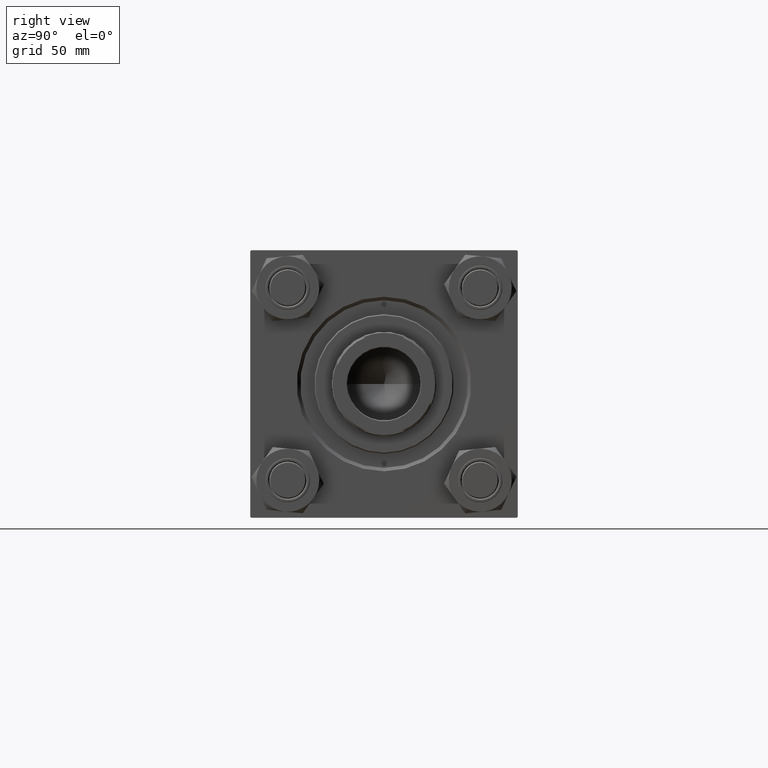
[diagram: clean part render]
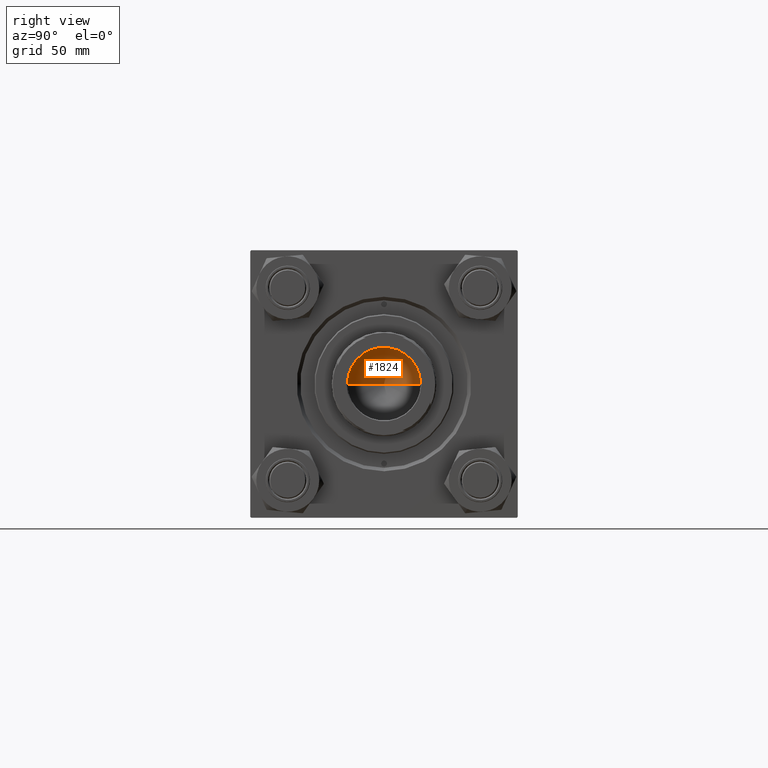
[diagram: same view with one face highlighted and labeled with its STEP entity id]
A machine part, right view. The second image highlights one B-rep face of the part: STEP entity #1824.
In plain terms, the highlighted conical surface has half-angle 59 deg.
Its self-contained STEP definition (entity closure, byte-faithful):
#1824 = ADVANCED_FACE ( 'NONE', ( #12659 ), #6346, .F. ) ;
#2089 = DIRECTION ( 'NONE',  ( 1.000000000000000000, 0.000000000000000000, 0.000000000000000000 ) ) ;
#3663 = CARTESIAN_POINT ( 'NONE',  ( 15.74999999999998934, 0.000000000000000000, 111.0000000000000000 ) ) ;
#3863 = EDGE_CURVE ( 'NONE', #41210, #15514, #4591, .T. ) ;
#4502 = DIRECTION ( 'NONE',  ( 1.000000000000000000, 0.000000000000000000, 0.000000000000000000 ) ) ;
#4591 = LINE ( 'NONE', #24194, #45465 ) ;
#6346 = CONICAL_SURFACE ( 'NONE', #48633, 15.74999999999998934, 1.029744258676652979 ) ;
#8069 = DIRECTION ( 'NONE',  ( -0.000000000000000000, -0.000000000000000000, 1.000000000000000000 ) ) ;
#9954 = CARTESIAN_POINT ( 'NONE',  ( 0.000000000000000000, 0.000000000000000000, 111.0000000000000000 ) ) ;
#10167 = CARTESIAN_POINT ( 'NONE',  ( -15.74999999999998934, 1.928818708657080161E-15, 111.0000000000000000 ) ) ;
#10211 = DIRECTION ( 'NONE',  ( -0.000000000000000000, -0.000000000000000000, 1.000000000000000000 ) ) ;
#12659 = FACE_OUTER_BOUND ( 'NONE', #19521, .T. ) ;
#13595 = EDGE_CURVE ( 'NONE', #41210, #25739, #36550, .T. ) ;
#14072 = VECTOR ( 'NONE', #39861, 1000.000000000000000 ) ;
#14910 = EDGE_CURVE ( 'NONE', #25739, #15514, #35132, .T. ) ;
#15514 = VERTEX_POINT ( 'NONE', #3663 ) ;
#19521 = EDGE_LOOP ( 'NONE', ( #26336, #23800, #37892 ) ) ;
#19898 = DIRECTION ( 'NONE',  ( 0.8571673007021115565, 0.000000000000000000, 0.5150380749100554878 ) ) ;
#23800 = ORIENTED_EDGE ( 'NONE', *, *, #13595, .T. ) ;
#24106 = CARTESIAN_POINT ( 'NONE',  ( 0.000000000000000000, 0.000000000000000000, 111.0000000000000000 ) ) ;
#24194 = CARTESIAN_POINT ( 'NONE',  ( 15.74999999999998934, 0.000000000000000000, 111.0000000000000000 ) ) ;
#25385 = AXIS2_PLACEMENT_3D ( 'NONE', #9954, #10211, #2089 ) ;
#25739 = VERTEX_POINT ( 'NONE', #10167 ) ;
#26336 = ORIENTED_EDGE ( 'NONE', *, *, #3863, .F. ) ;
#32729 = CARTESIAN_POINT ( 'NONE',  ( -15.74999999999998934, 1.928818708657080161E-15, 111.0000000000000000 ) ) ;
#35132 = CIRCLE ( 'NONE', #25385, 15.74999999999998934 ) ;
#36550 = LINE ( 'NONE', #32729, #14072 ) ;
#37892 = ORIENTED_EDGE ( 'NONE', *, *, #14910, .T. ) ;
#37916 = CARTESIAN_POINT ( 'NONE',  ( -1.584115414415908206E-14, 0.000000000000000000, 101.5364452503159072 ) ) ;
#39861 = DIRECTION ( 'NONE',  ( -0.8571673007021115565, 1.049727191138617710E-16, 0.5150380749100554878 ) ) ;
#41210 = VERTEX_POINT ( 'NONE', #37916 ) ;
#45465 = VECTOR ( 'NONE', #19898, 1000.000000000000000 ) ;
#48633 = AXIS2_PLACEMENT_3D ( 'NONE', #24106, #8069, #4502 ) ;